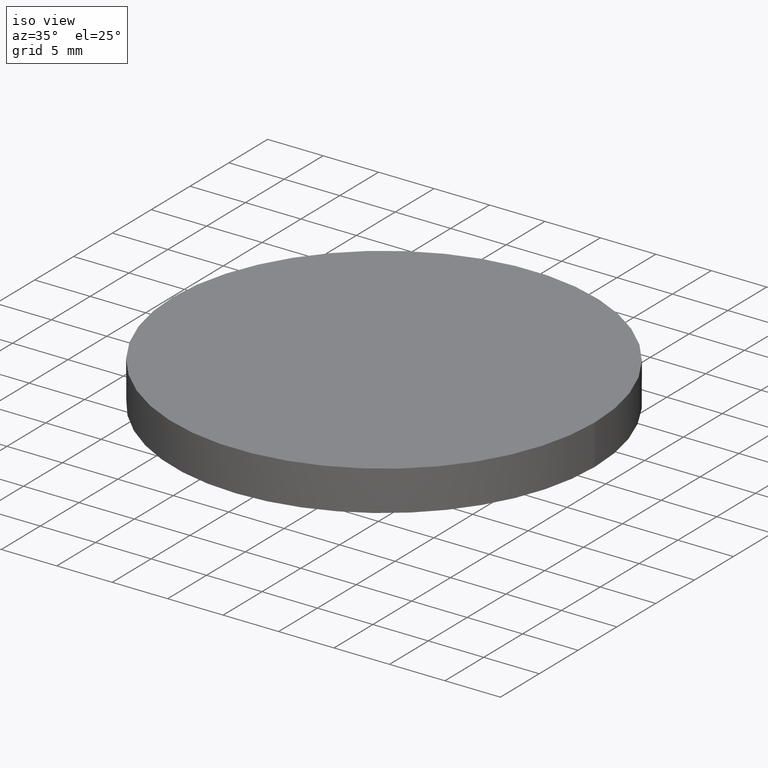
[diagram: clean part render]
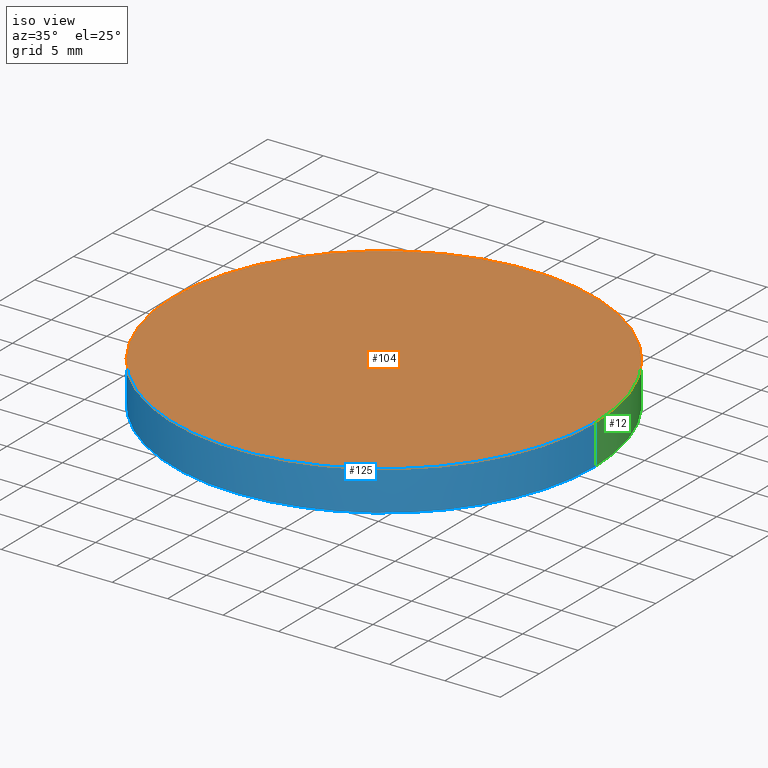
[diagram: same view with three faces highlighted in distinct colors, each labeled with its STEP entity id]
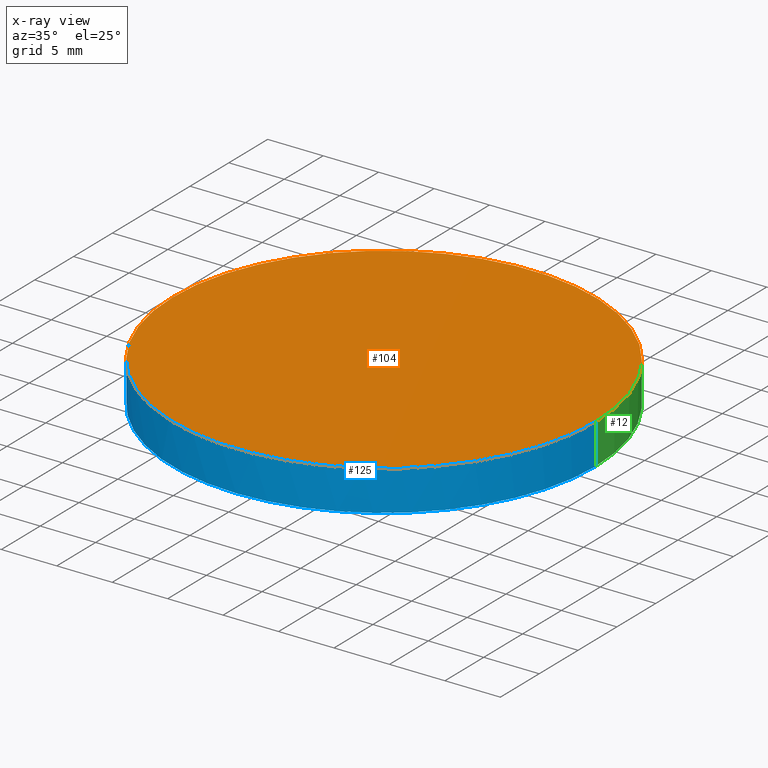
[diagram: x-ray of the same camera — body ghosted, the three highlighted faces saturated]
A machine part, iso view with three faces highlighted in distinct colors.
The next image is the same camera in x-ray (body ghosted, the three faces saturated) — at least one of them is partly hidden behind the body in this view.
Their STEP definitions:

[orange] entity #104 — the highlighted planar face has unit normal (0, 0, 1).
#4 = DIRECTION ( 'NONE',  ( 1.000000000000000000, 0.0000000000000000000, 0.0000000000000000000 ) ) ;
#21 = DIRECTION ( 'NONE',  ( 0.0000000000000000000, 0.0000000000000000000, 1.000000000000000000 ) ) ;
#36 = AXIS2_PLACEMENT_3D ( 'NONE', #41, #219, #4 ) ;
#41 = CARTESIAN_POINT ( 'NONE',  ( -4.662936703425659800E-015, -8.881784197001250400E-016, 4.000000000000000000 ) ) ;
#56 = DIRECTION ( 'NONE',  ( 1.000000000000000000, 0.0000000000000000000, 0.0000000000000000000 ) ) ;
#72 = VERTEX_POINT ( 'NONE', #114 ) ;
#73 = DIRECTION ( 'NONE',  ( -0.0000000000000000000, -0.0000000000000000000, -1.000000000000000000 ) ) ;
#76 = ORIENTED_EDGE ( 'NONE', *, *, #86, .F. ) ;
#86 = EDGE_CURVE ( 'NONE', #72, #181, #148, .T. ) ;
#96 = PLANE ( 'NONE',  #218 ) ;
#97 = CIRCLE ( 'NONE', #36, 19.05000000000000100 ) ;
#104 = ADVANCED_FACE ( 'NONE', ( #174 ), #96, .T. ) ;
#114 = CARTESIAN_POINT ( 'NONE',  ( -19.05000000000000400, 1.444773732675583000E-015, 4.000000000000000000 ) ) ;
#116 = DIRECTION ( 'NONE',  ( 1.000000000000000000, 0.0000000000000000000, -0.0000000000000000000 ) ) ;
#117 = EDGE_LOOP ( 'NONE', ( #169, #76 ) ) ;
#121 = AXIS2_PLACEMENT_3D ( 'NONE', #165, #73, #56 ) ;
#148 = CIRCLE ( 'NONE', #121, 19.05000000000000100 ) ;
#159 = EDGE_CURVE ( 'NONE', #181, #72, #97, .T. ) ;
#165 = CARTESIAN_POINT ( 'NONE',  ( -4.662936703425659800E-015, -8.881784197001250400E-016, 4.000000000000000000 ) ) ;
#169 = ORIENTED_EDGE ( 'NONE', *, *, #159, .F. ) ;
#174 = FACE_OUTER_BOUND ( 'NONE', #117, .T. ) ;
#181 = VERTEX_POINT ( 'NONE', #220 ) ;
#218 = AXIS2_PLACEMENT_3D ( 'NONE', #223, #21, #116 ) ;
#219 = DIRECTION ( 'NONE',  ( -0.0000000000000000000, -0.0000000000000000000, -1.000000000000000000 ) ) ;
#220 = CARTESIAN_POINT ( 'NONE',  ( 19.04999999999999700, -8.881784197001250400E-016, 4.000000000000000000 ) ) ;
#223 = CARTESIAN_POINT ( 'NONE',  ( 0.0000000000000000000, 39.06600000000000300, 4.000000000000000000 ) ) ;

[blue] entity #125 — the highlighted cylindrical surface (partial cylindrical patch) has radius 19.05 mm, axis along (0, 0, 1).
#1 = DIRECTION ( 'NONE',  ( 0.0000000000000000000, 0.0000000000000000000, 1.000000000000000000 ) ) ;
#4 = DIRECTION ( 'NONE',  ( 1.000000000000000000, 0.0000000000000000000, 0.0000000000000000000 ) ) ;
#9 = ORIENTED_EDGE ( 'NONE', *, *, #221, .F. ) ;
#17 = CARTESIAN_POINT ( 'NONE',  ( 19.04999999999999700, -8.881784197001250400E-016, 0.3812727041324490100 ) ) ;
#18 = DIRECTION ( 'NONE',  ( 0.0000000000000000000, 0.0000000000000000000, 1.000000000000000000 ) ) ;
#29 = AXIS2_PLACEMENT_3D ( 'NONE', #170, #18, #201 ) ;
#32 = AXIS2_PLACEMENT_3D ( 'NONE', #199, #75, #118 ) ;
#36 = AXIS2_PLACEMENT_3D ( 'NONE', #41, #219, #4 ) ;
#39 = LINE ( 'NONE', #204, #87 ) ;
#41 = CARTESIAN_POINT ( 'NONE',  ( -4.662936703425659800E-015, -8.881784197001250400E-016, 4.000000000000000000 ) ) ;
#49 = EDGE_CURVE ( 'NONE', #173, #51, #207, .T. ) ;
#51 = VERTEX_POINT ( 'NONE', #109 ) ;
#63 = VERTEX_POINT ( 'NONE', #17 ) ;
#65 = FACE_OUTER_BOUND ( 'NONE', #130, .T. ) ;
#67 = ORIENTED_EDGE ( 'NONE', *, *, #124, .F. ) ;
#72 = VERTEX_POINT ( 'NONE', #114 ) ;
#75 = DIRECTION ( 'NONE',  ( -0.0000000000000000000, -0.0000000000000000000, -1.000000000000000000 ) ) ;
#77 = DIRECTION ( 'NONE',  ( -0.0000000000000000000, -0.0000000000000000000, -1.000000000000000000 ) ) ;
#87 = VECTOR ( 'NONE', #102, 1000.000000000000000 ) ;
#97 = CIRCLE ( 'NONE', #36, 19.05000000000000100 ) ;
#99 = EDGE_CURVE ( 'NONE', #63, #181, #126, .T. ) ;
#102 = DIRECTION ( 'NONE',  ( 0.0000000000000000000, 0.0000000000000000000, 1.000000000000000000 ) ) ;
#109 = CARTESIAN_POINT ( 'NONE',  ( -19.05000000000000400, 1.444773732675583000E-015, 0.3812727041324490100 ) ) ;
#111 = CYLINDRICAL_SURFACE ( 'NONE', #29, 19.05000000000000100 ) ;
#114 = CARTESIAN_POINT ( 'NONE',  ( -19.05000000000000400, 1.444773732675583000E-015, 4.000000000000000000 ) ) ;
#115 = CARTESIAN_POINT ( 'NONE',  ( -4.662936703425659800E-015, -8.881784197001250400E-016, 0.3812727041324490100 ) ) ;
#118 = DIRECTION ( 'NONE',  ( 1.000000000000000000, 0.0000000000000000000, 0.0000000000000000000 ) ) ;
#124 = EDGE_CURVE ( 'NONE', #63, #173, #186, .T. ) ;
#125 = ADVANCED_FACE ( 'NONE', ( #65 ), #111, .T. ) ;
#126 = LINE ( 'NONE', #217, #163 ) ;
#130 = EDGE_LOOP ( 'NONE', ( #9, #209, #67, #190, #225 ) ) ;
#152 = DIRECTION ( 'NONE',  ( 1.000000000000000000, 0.0000000000000000000, 0.0000000000000000000 ) ) ;
#159 = EDGE_CURVE ( 'NONE', #181, #72, #97, .T. ) ;
#163 = VECTOR ( 'NONE', #1, 1000.000000000000000 ) ;
#167 = CARTESIAN_POINT ( 'NONE',  ( -1.050204884697833200E-013, -19.05000000000012900, 0.3812727041324557900 ) ) ;
#170 = CARTESIAN_POINT ( 'NONE',  ( -4.662936703425659800E-015, -8.881784197001250400E-016, 0.3812727041324490100 ) ) ;
#173 = VERTEX_POINT ( 'NONE', #167 ) ;
#181 = VERTEX_POINT ( 'NONE', #220 ) ;
#186 = CIRCLE ( 'NONE', #230, 19.05000000000000100 ) ;
#190 = ORIENTED_EDGE ( 'NONE', *, *, #99, .T. ) ;
#199 = CARTESIAN_POINT ( 'NONE',  ( -4.662936703425659800E-015, -8.881784197001250400E-016, 0.3812727041324490100 ) ) ;
#201 = DIRECTION ( 'NONE',  ( 1.000000000000000000, 0.0000000000000000000, 0.0000000000000000000 ) ) ;
#204 = CARTESIAN_POINT ( 'NONE',  ( -19.05000000000000400, 1.444773732675583000E-015, 0.3812727041324490100 ) ) ;
#207 = CIRCLE ( 'NONE', #32, 19.05000000000000100 ) ;
#209 = ORIENTED_EDGE ( 'NONE', *, *, #49, .F. ) ;
#217 = CARTESIAN_POINT ( 'NONE',  ( 19.04999999999999700, -8.881784197001250400E-016, 0.3812727041324490100 ) ) ;
#219 = DIRECTION ( 'NONE',  ( -0.0000000000000000000, -0.0000000000000000000, -1.000000000000000000 ) ) ;
#220 = CARTESIAN_POINT ( 'NONE',  ( 19.04999999999999700, -8.881784197001250400E-016, 4.000000000000000000 ) ) ;
#221 = EDGE_CURVE ( 'NONE', #51, #72, #39, .T. ) ;
#225 = ORIENTED_EDGE ( 'NONE', *, *, #159, .T. ) ;
#230 = AXIS2_PLACEMENT_3D ( 'NONE', #115, #77, #152 ) ;

[green] entity #12 — the highlighted cylindrical surface (partial cylindrical patch) has radius 19.05 mm, axis along (0, 0, 1).
#1 = DIRECTION ( 'NONE',  ( 0.0000000000000000000, 0.0000000000000000000, 1.000000000000000000 ) ) ;
#12 = ADVANCED_FACE ( 'NONE', ( #20 ), #16, .T. ) ;
#13 = ORIENTED_EDGE ( 'NONE', *, *, #60, .F. ) ;
#16 = CYLINDRICAL_SURFACE ( 'NONE', #47, 19.05000000000000100 ) ;
#17 = CARTESIAN_POINT ( 'NONE',  ( 19.04999999999999700, -8.881784197001250400E-016, 0.3812727041324490100 ) ) ;
#20 = FACE_OUTER_BOUND ( 'NONE', #144, .T. ) ;
#33 = EDGE_CURVE ( 'NONE', #232, #63, #205, .T. ) ;
#35 = CARTESIAN_POINT ( 'NONE',  ( -4.662936703425659800E-015, -8.881784197001250400E-016, 0.3812727041324490100 ) ) ;
#39 = LINE ( 'NONE', #204, #87 ) ;
#40 = DIRECTION ( 'NONE',  ( 1.000000000000000000, -1.776356839400250500E-015, 0.0000000000000000000 ) ) ;
#47 = AXIS2_PLACEMENT_3D ( 'NONE', #35, #177, #210 ) ;
#51 = VERTEX_POINT ( 'NONE', #109 ) ;
#55 = AXIS2_PLACEMENT_3D ( 'NONE', #138, #134, #151 ) ;
#56 = DIRECTION ( 'NONE',  ( 1.000000000000000000, 0.0000000000000000000, 0.0000000000000000000 ) ) ;
#59 = DIRECTION ( 'NONE',  ( -0.0000000000000000000, -0.0000000000000000000, -1.000000000000000000 ) ) ;
#60 = EDGE_CURVE ( 'NONE', #51, #232, #157, .T. ) ;
#63 = VERTEX_POINT ( 'NONE', #17 ) ;
#72 = VERTEX_POINT ( 'NONE', #114 ) ;
#73 = DIRECTION ( 'NONE',  ( -0.0000000000000000000, -0.0000000000000000000, -1.000000000000000000 ) ) ;
#86 = EDGE_CURVE ( 'NONE', #72, #181, #148, .T. ) ;
#87 = VECTOR ( 'NONE', #102, 1000.000000000000000 ) ;
#99 = EDGE_CURVE ( 'NONE', #63, #181, #126, .T. ) ;
#102 = DIRECTION ( 'NONE',  ( 0.0000000000000000000, 0.0000000000000000000, 1.000000000000000000 ) ) ;
#107 = AXIS2_PLACEMENT_3D ( 'NONE', #233, #59, #40 ) ;
#109 = CARTESIAN_POINT ( 'NONE',  ( -19.05000000000000400, 1.444773732675583000E-015, 0.3812727041324490100 ) ) ;
#114 = CARTESIAN_POINT ( 'NONE',  ( -19.05000000000000400, 1.444773732675583000E-015, 4.000000000000000000 ) ) ;
#121 = AXIS2_PLACEMENT_3D ( 'NONE', #165, #73, #56 ) ;
#126 = LINE ( 'NONE', #217, #163 ) ;
#127 = ORIENTED_EDGE ( 'NONE', *, *, #99, .F. ) ;
#134 = DIRECTION ( 'NONE',  ( -0.0000000000000000000, -0.0000000000000000000, -1.000000000000000000 ) ) ;
#138 = CARTESIAN_POINT ( 'NONE',  ( -4.662936703425659800E-015, -8.881784197001250400E-016, 0.3812727041324490100 ) ) ;
#143 = CARTESIAN_POINT ( 'NONE',  ( -9.571881449258180800E-014, 19.05000000000018500, 0.3812727041324557900 ) ) ;
#144 = EDGE_LOOP ( 'NONE', ( #13, #197, #200, #127, #229 ) ) ;
#148 = CIRCLE ( 'NONE', #121, 19.05000000000000100 ) ;
#151 = DIRECTION ( 'NONE',  ( 1.000000000000000000, 8.881784197001252300E-016, 0.0000000000000000000 ) ) ;
#157 = CIRCLE ( 'NONE', #55, 19.05000000000000100 ) ;
#163 = VECTOR ( 'NONE', #1, 1000.000000000000000 ) ;
#165 = CARTESIAN_POINT ( 'NONE',  ( -4.662936703425659800E-015, -8.881784197001250400E-016, 4.000000000000000000 ) ) ;
#177 = DIRECTION ( 'NONE',  ( 0.0000000000000000000, 0.0000000000000000000, 1.000000000000000000 ) ) ;
#181 = VERTEX_POINT ( 'NONE', #220 ) ;
#197 = ORIENTED_EDGE ( 'NONE', *, *, #221, .T. ) ;
#200 = ORIENTED_EDGE ( 'NONE', *, *, #86, .T. ) ;
#204 = CARTESIAN_POINT ( 'NONE',  ( -19.05000000000000400, 1.444773732675583000E-015, 0.3812727041324490100 ) ) ;
#205 = CIRCLE ( 'NONE', #107, 19.05000000000000100 ) ;
#210 = DIRECTION ( 'NONE',  ( 1.000000000000000000, 0.0000000000000000000, 0.0000000000000000000 ) ) ;
#217 = CARTESIAN_POINT ( 'NONE',  ( 19.04999999999999700, -8.881784197001250400E-016, 0.3812727041324490100 ) ) ;
#220 = CARTESIAN_POINT ( 'NONE',  ( 19.04999999999999700, -8.881784197001250400E-016, 4.000000000000000000 ) ) ;
#221 = EDGE_CURVE ( 'NONE', #51, #72, #39, .T. ) ;
#229 = ORIENTED_EDGE ( 'NONE', *, *, #33, .F. ) ;
#232 = VERTEX_POINT ( 'NONE', #143 ) ;
#233 = CARTESIAN_POINT ( 'NONE',  ( -4.662936703425659800E-015, -8.881784197001250400E-016, 0.3812727041324490100 ) ) ;